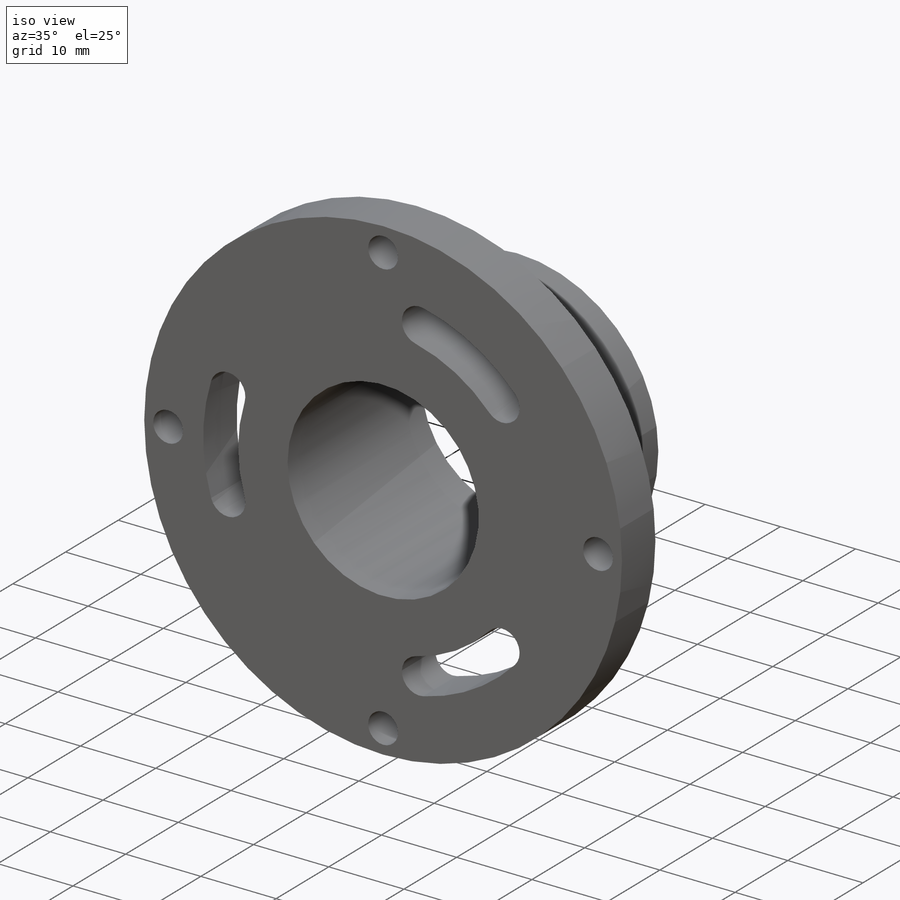
[diagram: iso view]
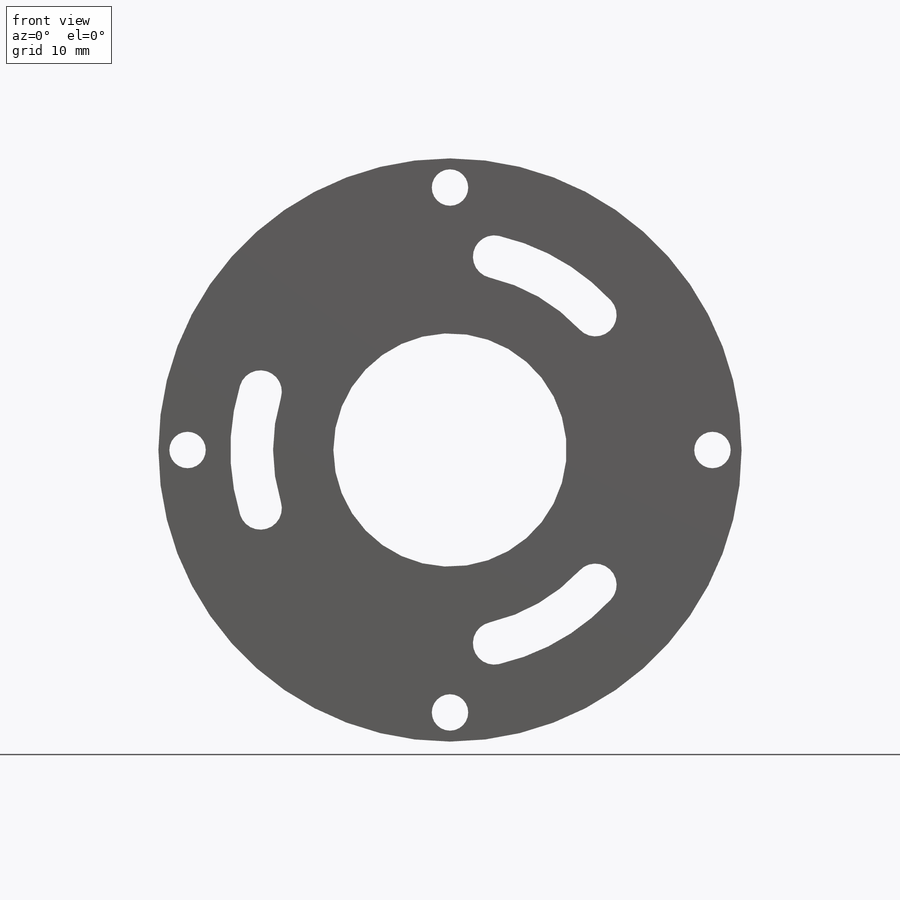
[diagram: front view]
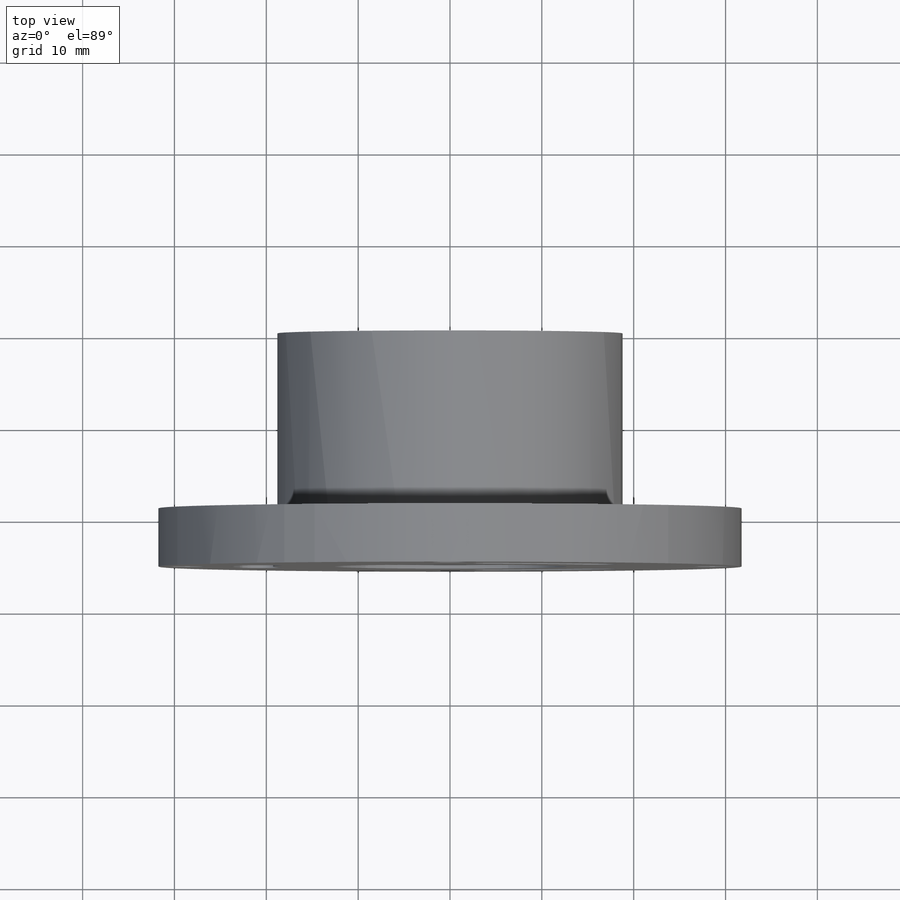
[diagram: top view]
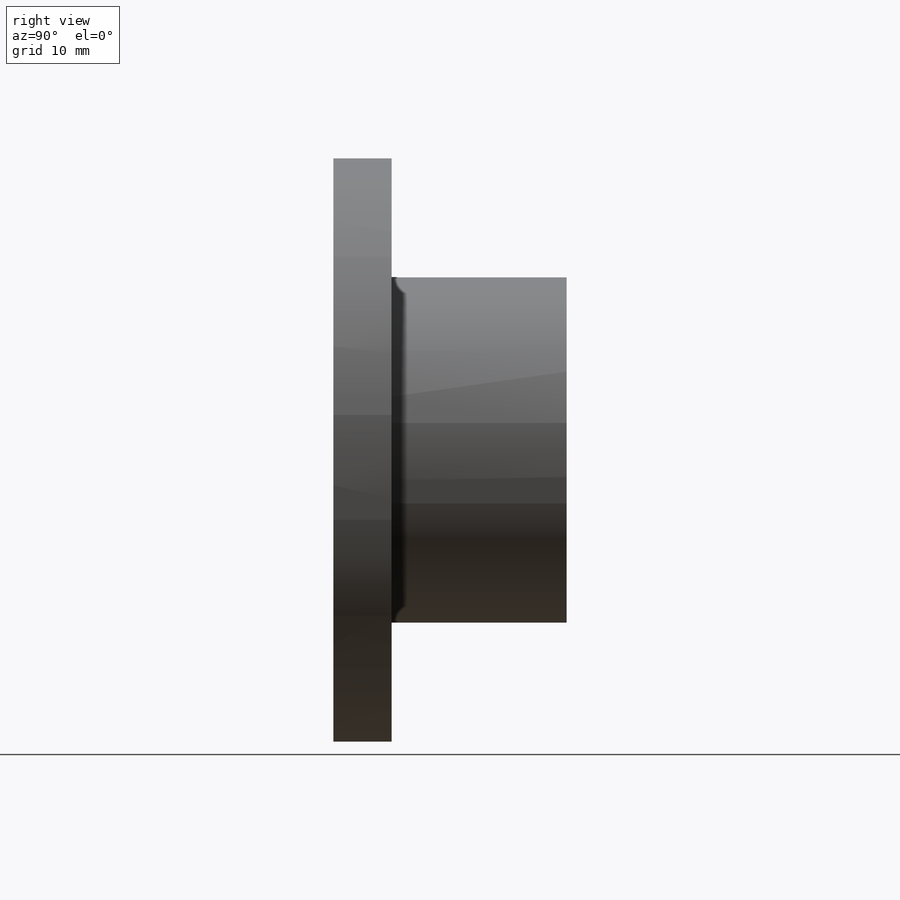
[diagram: right view]
SOLIDWORKS PART (.sldprt)
format: sldprt  version: not decoded by parser v0  size: 263,168 bytes
history: native  units: mm
features: sketch x9, cut_extrude x4, hole x2, mirror x2, material x1, extrude x1, pattern_circular x1 (+13 scaffold rows collapsed)
feature tree (33):
  scaffold x13  (default folders/planes/origin — collapsed)
  material  "Material <not specified>"
  sketch  "Sketch1"  dims[D1=63.5mm]
  extrude  "Boss-Extrude1"  Depth=25.4mm
  sketch  "Sketch2"  dims[D1=37.592mm]
  cut_extrude  "Cut-Extrude1"  Depth=19.05mm
  sketch  "Sketch3"  dims[D1=25.4mm]
  cut_extrude  "Cut-Extrude2"  [1 undecoded]
  hole  "#2-56 Tapped Hole1"  Diameter=1.778mm Depth=5.73278mm
  sketch  "Sketch8"  dims[D1=15.24mm D2=15.24mm]
  sketch  "Sketch7"  dims[hole-wizard template sketch: 47 standard entries collapsed; hole parameters kept: c15.Tap Drill Depth=~5.73278mm c15.D3=~14.816244mm c15.Drill Angle=118.0deg]
  hole  "5/32 (0.15625) Diameter Hole1"  Diameter=3.96875mm Depth=25.4mm
  sketch  "Sketch5"  dims[D1=28.575mm D2=28.575mm]
  sketch  "Sketch6"  dims[hole-wizard template sketch: 60 standard entries collapsed; hole parameters kept: c18.Thru Hole Depth=25.4mm]
  mirror  "Mirror1"
  mirror  "Mirror2"
  sketch  "Sketch9"  dims[c1.D1=~27.810138mm c2.D1=30.0deg c2.D2=6.35mm c2.D3=21.59mm]
  cut_extrude  "Cut-Extrude3"  [1 undecoded]
  pattern_circular  "CirPattern1"  Count=3 Angle=360deg
  sketch  "Sketch10"  dims[D1=15.875mm D2=20.32mm]
  cut_extrude  "Cut-Extrude4"  Depth=3.175mm
decode coverage: 15 of 19 modeling features carry decoded parameters
note: ~ marks probable driven/reference dimensions
note: 2 parameter values undecoded
note: suppression state not decoded; provenance and decode notes live in map.json
